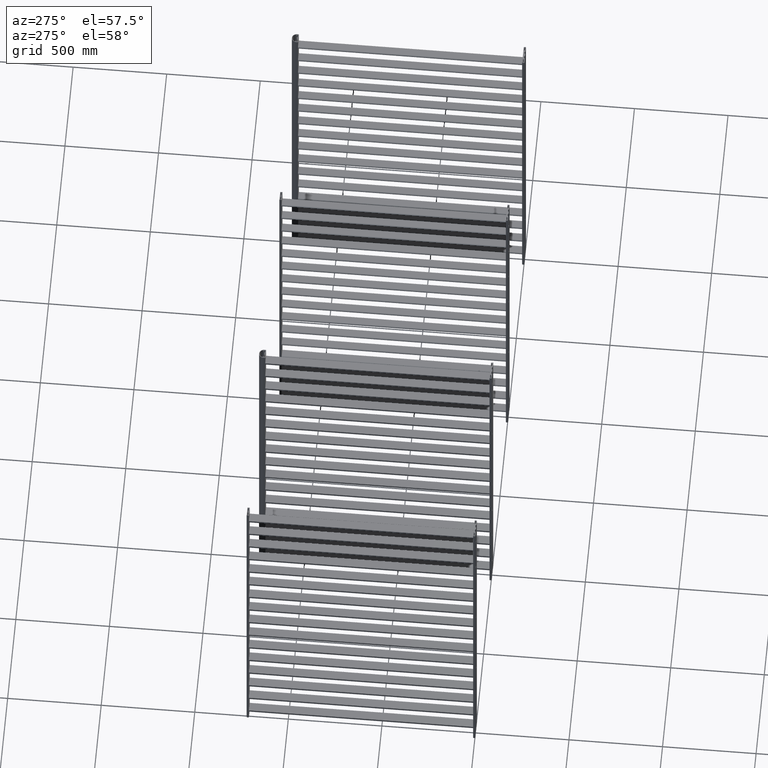
[diagram: clean part render]
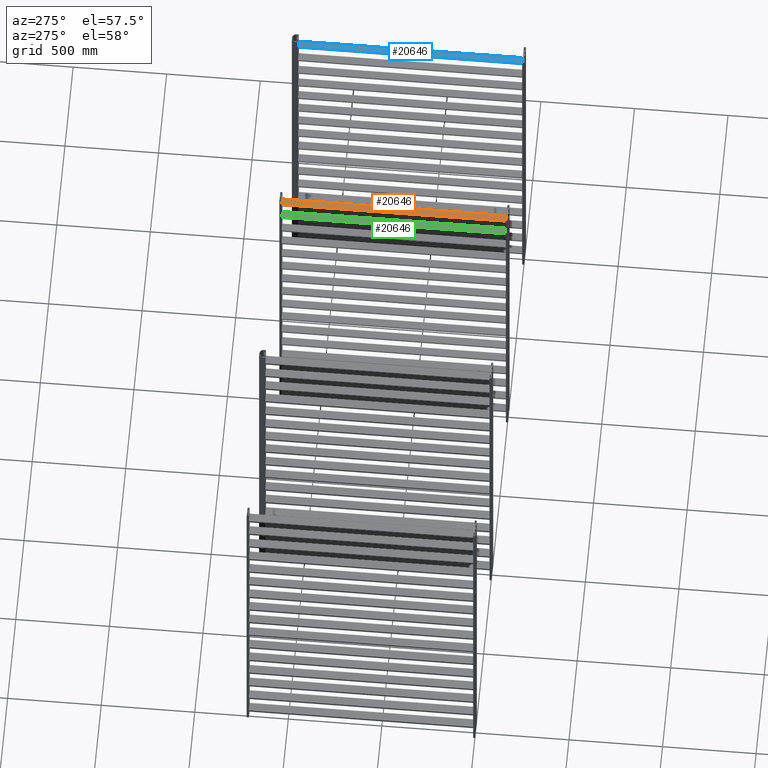
[diagram: same view with three faces highlighted in distinct colors, each labeled with its STEP entity id]
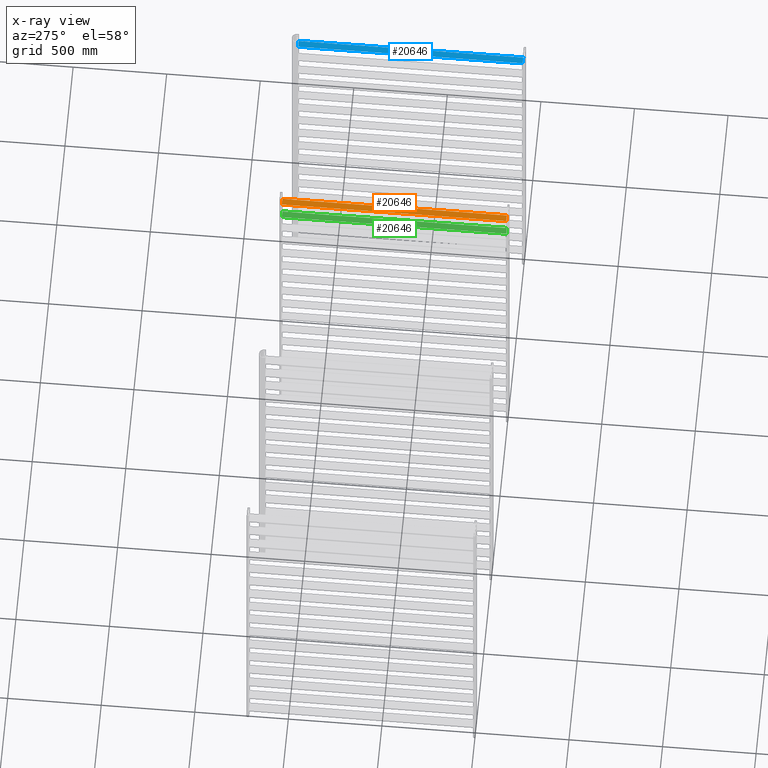
[diagram: x-ray of the same camera — body ghosted, the three highlighted faces saturated]
A machine part, auxiliary view with three faces highlighted in distinct colors.
The next image is the same camera in x-ray (body ghosted, the three faces saturated) — at least one of them is partly hidden behind the body in this view.
Their STEP definitions:

[orange] entity #20646 — the highlighted planar face has unit normal (0, 0, 1).
#764=PLANE('',#22690);
#2779=FACE_OUTER_BOUND('',#3838,.T.);
#3838=EDGE_LOOP('',(#17805,#17806,#17807,#17808));
#5251=LINE('',#37038,#6790);
#5252=LINE('',#37041,#6791);
#5253=LINE('',#37043,#6792);
#5254=LINE('',#37044,#6793);
#6790=VECTOR('',#27878,10.);
#6791=VECTOR('',#27881,10.);
#6792=VECTOR('',#27882,10.);
#6793=VECTOR('',#27883,10.);
#9708=VERTEX_POINT('',#37031);
#9711=VERTEX_POINT('',#37036);
#9712=VERTEX_POINT('',#37040);
#9713=VERTEX_POINT('',#37042);
#12559=EDGE_CURVE('',#9708,#9711,#5251,.T.);
#12560=EDGE_CURVE('',#9712,#9708,#5252,.T.);
#12561=EDGE_CURVE('',#9713,#9711,#5253,.T.);
#12562=EDGE_CURVE('',#9712,#9713,#5254,.T.);
#17805=ORIENTED_EDGE('',*,*,#12560,.T.);
#17806=ORIENTED_EDGE('',*,*,#12559,.T.);
#17807=ORIENTED_EDGE('',*,*,#12561,.F.);
#17808=ORIENTED_EDGE('',*,*,#12562,.F.);
#20646=ADVANCED_FACE('',(#2779),#764,.T.);
#22690=AXIS2_PLACEMENT_3D('',#37039,#27879,#27880);
#27878=DIRECTION('',(0.,0.,1.));
#27879=DIRECTION('center_axis',(0.,-1.,0.));
#27880=DIRECTION('ref_axis',(1.,0.,0.));
#27881=DIRECTION('',(1.,0.,0.));
#27882=DIRECTION('',(1.,0.,0.));
#27883=DIRECTION('',(0.,0.,1.));
#37031=CARTESIAN_POINT('',(42.9473990375027,0.820327351906599,0.));
#37036=CARTESIAN_POINT('',(42.9473990375027,0.820327351906598,1200.));
#37038=CARTESIAN_POINT('',(42.9473990375027,0.820327351906599,0.));
#37039=CARTESIAN_POINT('Origin',(6.94612536124987,0.820327351906599,0.));
#37040=CARTESIAN_POINT('',(6.94612536124987,0.820327351906599,0.));
#37041=CARTESIAN_POINT('',(6.94612536124987,0.820327351906599,0.));
#37042=CARTESIAN_POINT('',(6.94612536124987,0.820327351906598,1200.));
#37043=CARTESIAN_POINT('',(6.94612536124987,0.820327351906599,1200.));
#37044=CARTESIAN_POINT('',(6.94612536124987,0.820327351906599,0.));

[blue] entity #20646 — the highlighted planar face has unit normal (0, 0, 1).
#764=PLANE('',#22690);
#2779=FACE_OUTER_BOUND('',#3838,.T.);
#3838=EDGE_LOOP('',(#17805,#17806,#17807,#17808));
#5251=LINE('',#37038,#6790);
#5252=LINE('',#37041,#6791);
#5253=LINE('',#37043,#6792);
#5254=LINE('',#37044,#6793);
#6790=VECTOR('',#27878,10.);
#6791=VECTOR('',#27881,10.);
#6792=VECTOR('',#27882,10.);
#6793=VECTOR('',#27883,10.);
#9708=VERTEX_POINT('',#37031);
#9711=VERTEX_POINT('',#37036);
#9712=VERTEX_POINT('',#37040);
#9713=VERTEX_POINT('',#37042);
#12559=EDGE_CURVE('',#9708,#9711,#5251,.T.);
#12560=EDGE_CURVE('',#9712,#9708,#5252,.T.);
#12561=EDGE_CURVE('',#9713,#9711,#5253,.T.);
#12562=EDGE_CURVE('',#9712,#9713,#5254,.T.);
#17805=ORIENTED_EDGE('',*,*,#12560,.T.);
#17806=ORIENTED_EDGE('',*,*,#12559,.T.);
#17807=ORIENTED_EDGE('',*,*,#12561,.F.);
#17808=ORIENTED_EDGE('',*,*,#12562,.F.);
#20646=ADVANCED_FACE('',(#2779),#764,.T.);
#22690=AXIS2_PLACEMENT_3D('',#37039,#27879,#27880);
#27878=DIRECTION('',(0.,0.,1.));
#27879=DIRECTION('center_axis',(0.,-1.,0.));
#27880=DIRECTION('ref_axis',(1.,0.,0.));
#27881=DIRECTION('',(1.,0.,0.));
#27882=DIRECTION('',(1.,0.,0.));
#27883=DIRECTION('',(0.,0.,1.));
#37031=CARTESIAN_POINT('',(42.9473990375027,0.820327351906599,0.));
#37036=CARTESIAN_POINT('',(42.9473990375027,0.820327351906598,1200.));
#37038=CARTESIAN_POINT('',(42.9473990375027,0.820327351906599,0.));
#37039=CARTESIAN_POINT('Origin',(6.94612536124987,0.820327351906599,0.));
#37040=CARTESIAN_POINT('',(6.94612536124987,0.820327351906599,0.));
#37041=CARTESIAN_POINT('',(6.94612536124987,0.820327351906599,0.));
#37042=CARTESIAN_POINT('',(6.94612536124987,0.820327351906598,1200.));
#37043=CARTESIAN_POINT('',(6.94612536124987,0.820327351906599,1200.));
#37044=CARTESIAN_POINT('',(6.94612536124987,0.820327351906599,0.));

[green] entity #20646 — the highlighted planar face has unit normal (0, 0, 1).
#764=PLANE('',#22690);
#2779=FACE_OUTER_BOUND('',#3838,.T.);
#3838=EDGE_LOOP('',(#17805,#17806,#17807,#17808));
#5251=LINE('',#37038,#6790);
#5252=LINE('',#37041,#6791);
#5253=LINE('',#37043,#6792);
#5254=LINE('',#37044,#6793);
#6790=VECTOR('',#27878,10.);
#6791=VECTOR('',#27881,10.);
#6792=VECTOR('',#27882,10.);
#6793=VECTOR('',#27883,10.);
#9708=VERTEX_POINT('',#37031);
#9711=VERTEX_POINT('',#37036);
#9712=VERTEX_POINT('',#37040);
#9713=VERTEX_POINT('',#37042);
#12559=EDGE_CURVE('',#9708,#9711,#5251,.T.);
#12560=EDGE_CURVE('',#9712,#9708,#5252,.T.);
#12561=EDGE_CURVE('',#9713,#9711,#5253,.T.);
#12562=EDGE_CURVE('',#9712,#9713,#5254,.T.);
#17805=ORIENTED_EDGE('',*,*,#12560,.T.);
#17806=ORIENTED_EDGE('',*,*,#12559,.T.);
#17807=ORIENTED_EDGE('',*,*,#12561,.F.);
#17808=ORIENTED_EDGE('',*,*,#12562,.F.);
#20646=ADVANCED_FACE('',(#2779),#764,.T.);
#22690=AXIS2_PLACEMENT_3D('',#37039,#27879,#27880);
#27878=DIRECTION('',(0.,0.,1.));
#27879=DIRECTION('center_axis',(0.,-1.,0.));
#27880=DIRECTION('ref_axis',(1.,0.,0.));
#27881=DIRECTION('',(1.,0.,0.));
#27882=DIRECTION('',(1.,0.,0.));
#27883=DIRECTION('',(0.,0.,1.));
#37031=CARTESIAN_POINT('',(42.9473990375027,0.820327351906599,0.));
#37036=CARTESIAN_POINT('',(42.9473990375027,0.820327351906598,1200.));
#37038=CARTESIAN_POINT('',(42.9473990375027,0.820327351906599,0.));
#37039=CARTESIAN_POINT('Origin',(6.94612536124987,0.820327351906599,0.));
#37040=CARTESIAN_POINT('',(6.94612536124987,0.820327351906599,0.));
#37041=CARTESIAN_POINT('',(6.94612536124987,0.820327351906599,0.));
#37042=CARTESIAN_POINT('',(6.94612536124987,0.820327351906598,1200.));
#37043=CARTESIAN_POINT('',(6.94612536124987,0.820327351906599,1200.));
#37044=CARTESIAN_POINT('',(6.94612536124987,0.820327351906599,0.));